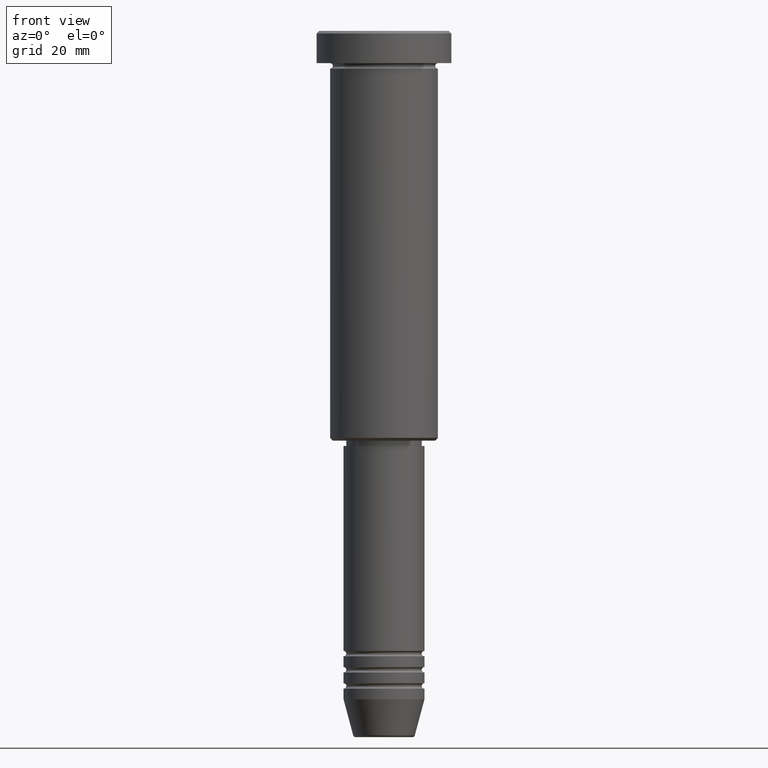
[diagram: clean part render]
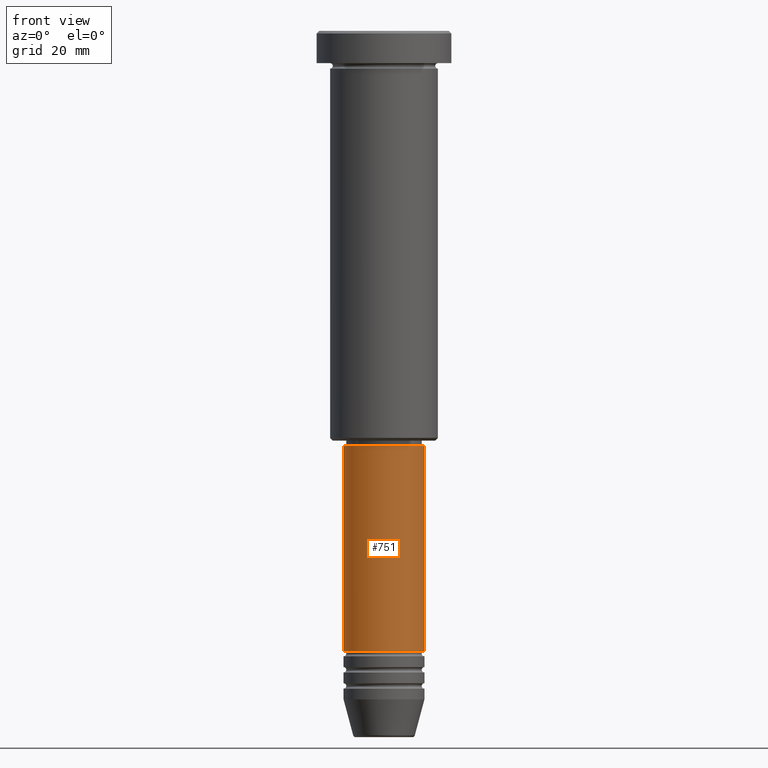
[diagram: same view with one face highlighted and labeled with its STEP entity id]
A machine part, front view. The second image highlights one B-rep face of the part: STEP entity #751.
In plain terms, the highlighted cylindrical surface (partial cylindrical patch) has radius 7.5 mm, axis along (-0, -0, 1).
Its self-contained STEP definition (entity closure, byte-faithful):
#22 = CARTESIAN_POINT ( 'NONE',  ( -7.500000000000000000, 9.184850993605147944E-16, 0.000000000000000000 ) ) ;
#68 = CARTESIAN_POINT ( 'NONE',  ( -7.500000000000000000, 9.184850993605147944E-16, -76.99999999999998579 ) ) ;
#72 = AXIS2_PLACEMENT_3D ( 'NONE', #287, #254, #1182 ) ;
#93 = CYLINDRICAL_SURFACE ( 'NONE', #72, 7.500000000000000000 ) ;
#151 = VECTOR ( 'NONE', #390, 1000.000000000000000 ) ;
#165 = DIRECTION ( 'NONE',  ( -0.000000000000000000, -0.000000000000000000, 1.000000000000000000 ) ) ;
#195 = ORIENTED_EDGE ( 'NONE', *, *, #424, .F. ) ;
#207 = VECTOR ( 'NONE', #965, 1000.000000000000000 ) ;
#217 = VERTEX_POINT ( 'NONE', #68 ) ;
#254 = DIRECTION ( 'NONE',  ( -0.000000000000000000, -0.000000000000000000, 1.000000000000000000 ) ) ;
#267 = EDGE_CURVE ( 'NONE', #477, #1051, #642, .T. ) ;
#272 = DIRECTION ( 'NONE',  ( 1.000000000000000000, 0.000000000000000000, 0.000000000000000000 ) ) ;
#287 = CARTESIAN_POINT ( 'NONE',  ( 0.000000000000000000, 0.000000000000000000, 0.000000000000000000 ) ) ;
#366 = DIRECTION ( 'NONE',  ( 1.000000000000000000, 0.000000000000000000, 0.000000000000000000 ) ) ;
#390 = DIRECTION ( 'NONE',  ( -0.000000000000000000, -0.000000000000000000, 1.000000000000000000 ) ) ;
#409 = LINE ( 'NONE', #674, #207 ) ;
#424 = EDGE_CURVE ( 'NONE', #217, #479, #894, .T. ) ;
#470 = ORIENTED_EDGE ( 'NONE', *, *, #648, .T. ) ;
#477 = VERTEX_POINT ( 'NONE', #992 ) ;
#479 = VERTEX_POINT ( 'NONE', #1179 ) ;
#519 = ORIENTED_EDGE ( 'NONE', *, *, #267, .T. ) ;
#546 = CARTESIAN_POINT ( 'NONE',  ( 0.000000000000000000, 0.000000000000000000, -76.99999999999998579 ) ) ;
#590 = AXIS2_PLACEMENT_3D ( 'NONE', #546, #165, #272 ) ;
#614 = FACE_OUTER_BOUND ( 'NONE', #955, .T. ) ;
#642 = CIRCLE ( 'NONE', #925, 7.500000000000000000 ) ;
#648 = EDGE_CURVE ( 'NONE', #1051, #479, #409, .T. ) ;
#674 = CARTESIAN_POINT ( 'NONE',  ( 7.500000000000000000, 0.000000000000000000, 0.000000000000000000 ) ) ;
#751 = ADVANCED_FACE ( 'NONE', ( #614 ), #93, .T. ) ;
#772 = LINE ( 'NONE', #22, #151 ) ;
#813 = CARTESIAN_POINT ( 'NONE',  ( 0.000000000000000000, 0.000000000000000000, -114.9999999999999574 ) ) ;
#820 = DIRECTION ( 'NONE',  ( -0.000000000000000000, -0.000000000000000000, 1.000000000000000000 ) ) ;
#827 = EDGE_CURVE ( 'NONE', #477, #217, #772, .T. ) ;
#894 = CIRCLE ( 'NONE', #590, 7.500000000000000000 ) ;
#925 = AXIS2_PLACEMENT_3D ( 'NONE', #813, #820, #366 ) ;
#955 = EDGE_LOOP ( 'NONE', ( #1077, #519, #470, #195 ) ) ;
#965 = DIRECTION ( 'NONE',  ( -0.000000000000000000, -0.000000000000000000, 1.000000000000000000 ) ) ;
#992 = CARTESIAN_POINT ( 'NONE',  ( -7.500000000000000000, 9.184850993605147944E-16, -114.9999999999999574 ) ) ;
#1051 = VERTEX_POINT ( 'NONE', #1092 ) ;
#1077 = ORIENTED_EDGE ( 'NONE', *, *, #827, .F. ) ;
#1092 = CARTESIAN_POINT ( 'NONE',  ( 7.500000000000000000, 0.000000000000000000, -114.9999999999999574 ) ) ;
#1179 = CARTESIAN_POINT ( 'NONE',  ( 7.500000000000000000, 0.000000000000000000, -76.99999999999998579 ) ) ;
#1182 = DIRECTION ( 'NONE',  ( 1.000000000000000000, 0.000000000000000000, 0.000000000000000000 ) ) ;